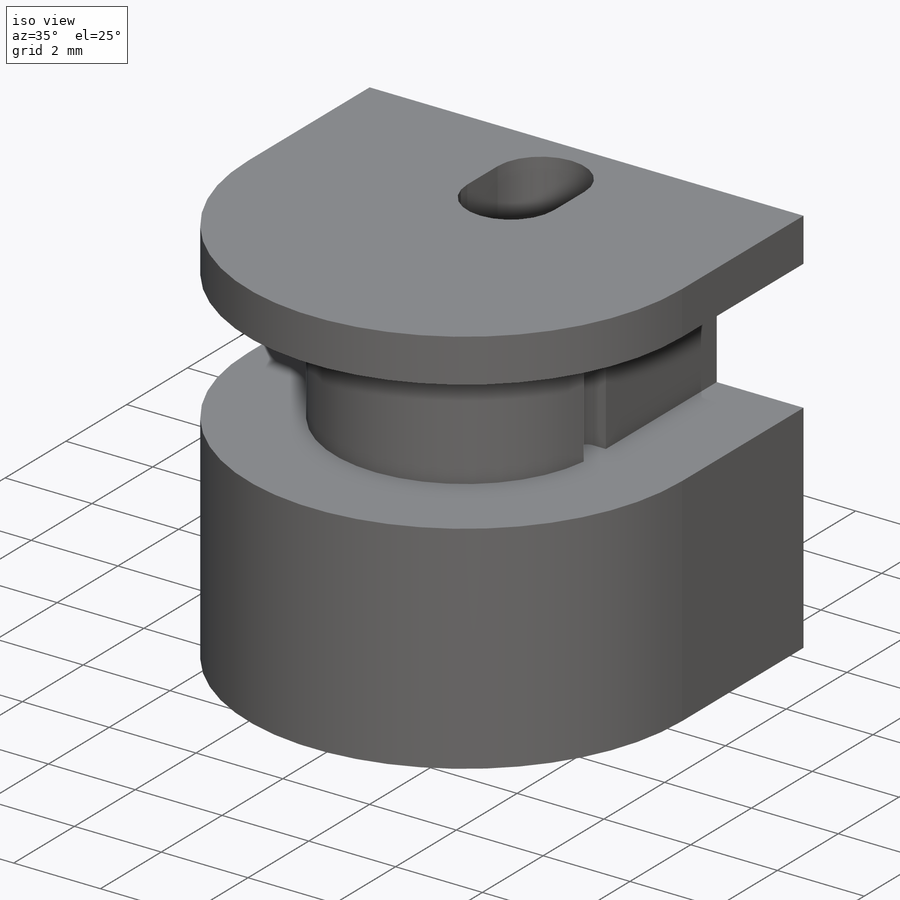
[diagram: iso view]
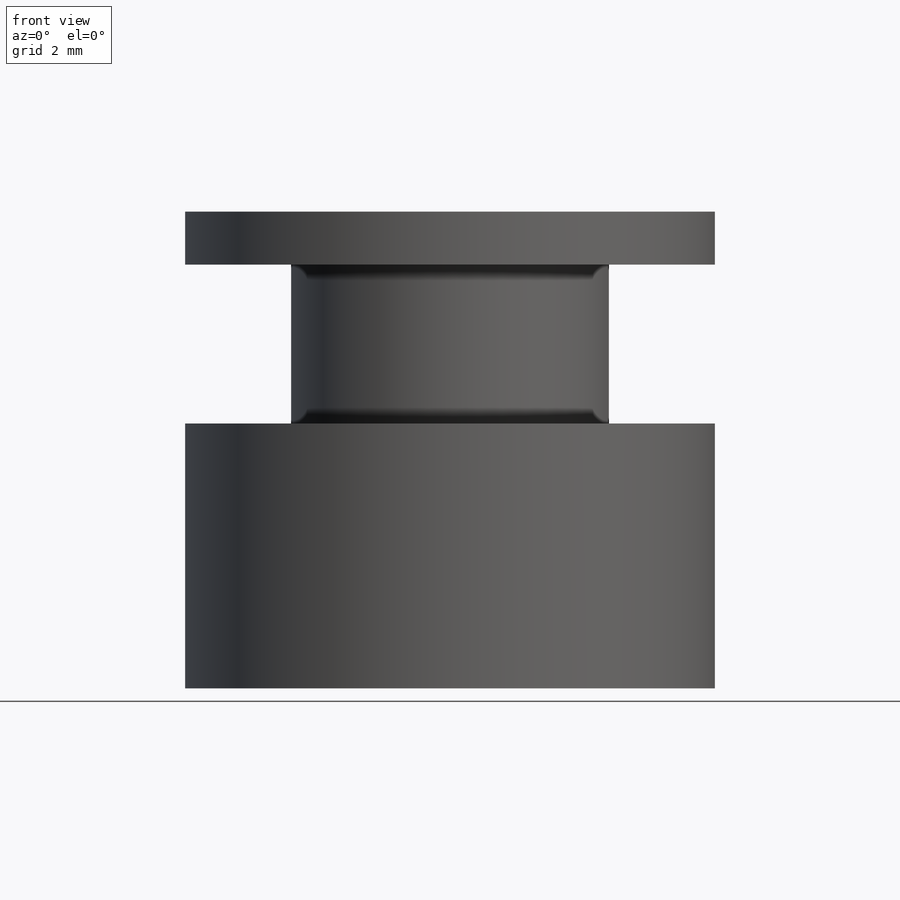
[diagram: front view]
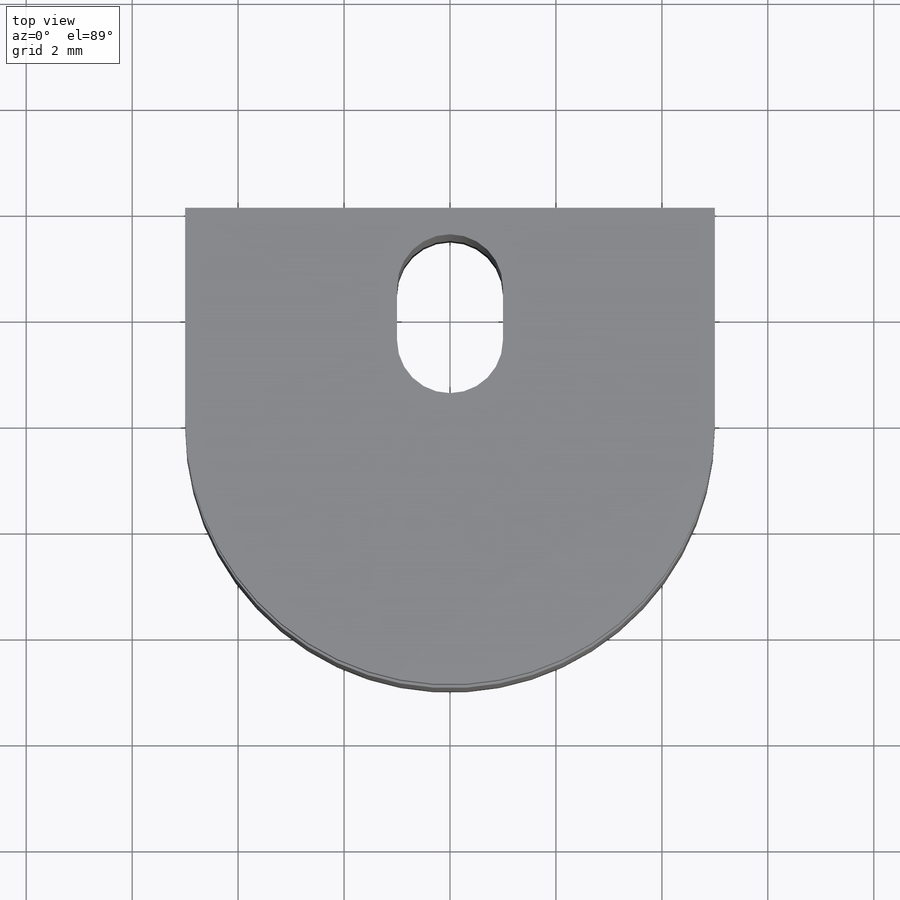
[diagram: top view]
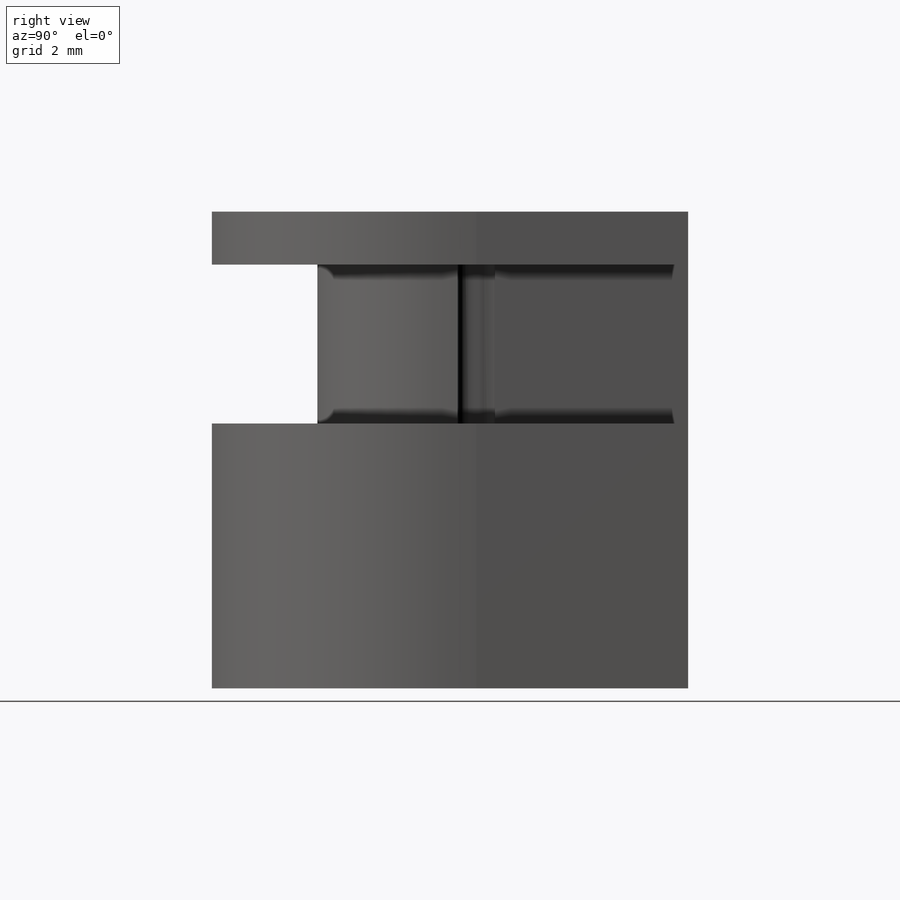
[diagram: right view]
SOLIDWORKS PART (.sldprt)
format: sldprt  version: not decoded by parser v0  size: 189,952 bytes
history: native  units: mm
features: sketch x5, plane x3, extrude x3, cut_extrude x2, material x1, fillet x1 (+8 scaffold rows collapsed)
feature tree (23):
  scaffold x8  (default folders/planes/origin — collapsed)
  material  "Matériau <non spécifié>"
  plane  "Plan de face"
  plane  "Plan de dessus"
  plane  "Plan de droite"
  sketch  "Esquisse1"  dims[D1=10.0mm D2=4.0mm]
  extrude  "Extrusion1"  Depth=5mm
  sketch  "Esquisse2"  dims[D1=3.0mm D2=4.0mm]
  extrude  "Extrusion2"  Depth=3mm
  sketch  "Esquisse3"  dims[D1=10.0mm D2=4.0mm]
  extrude  "Extrusion3"  Depth=1mm
  sketch  "Esquisse4"  dims[D1=1.0mm D2=1.0mm D3=2.0mm]
  cut_extrude  "Extrusion4"  [1 undecoded]
  sketch  "Esquisse5"  dims[D1=0.7mm D2=0.35mm]
  cut_extrude  "Extrusion5"  Depth=0.5mm
  fillet  "Congé1"  Radius=0.2mm
decode coverage: 10 of 11 modeling features carry decoded parameters
note: 1 parameter value undecoded
note: suppression state not decoded; provenance and decode notes live in map.json
